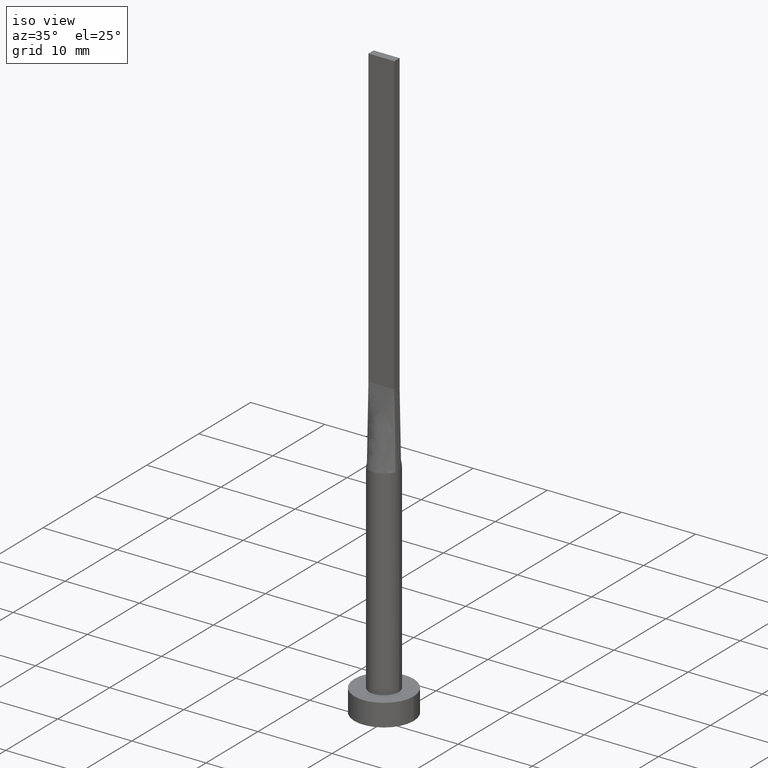
[diagram: clean part render]
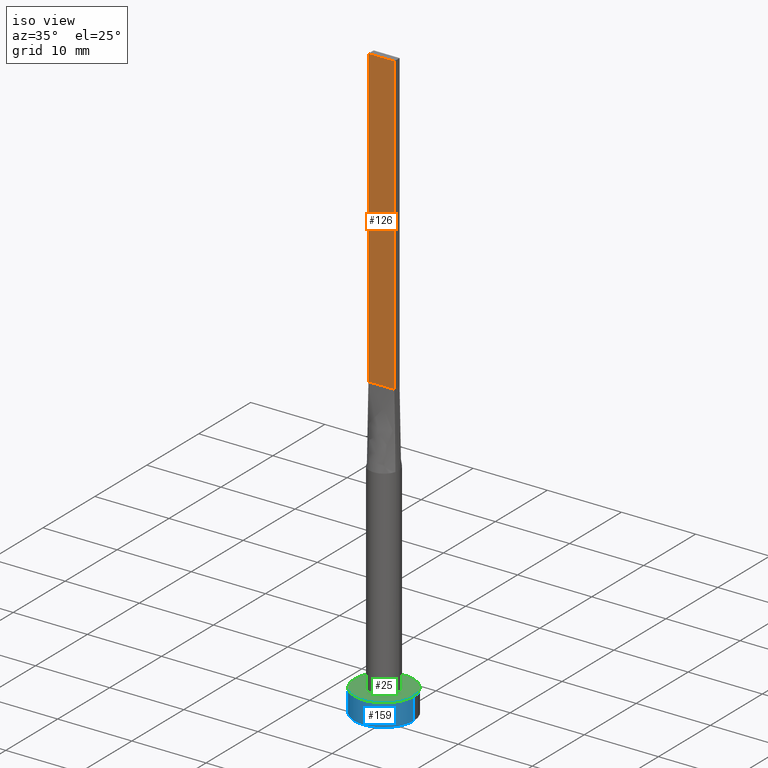
[diagram: same view with three faces highlighted in distinct colors, each labeled with its STEP entity id]
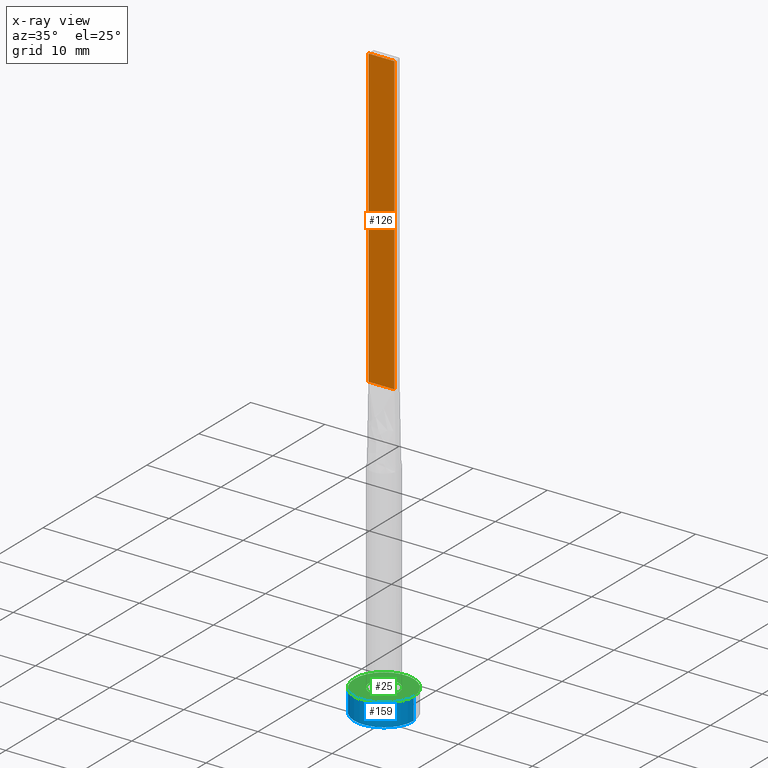
[diagram: x-ray of the same camera — body ghosted, the three highlighted faces saturated]
A machine part, iso view with three faces highlighted in distinct colors.
The next image is the same camera in x-ray (body ghosted, the three faces saturated) — at least one of them is partly hidden behind the body in this view.
Their STEP definitions:

[orange] entity #126 — the highlighted planar face has unit normal (0, 1, -0).
#2 = CARTESIAN_POINT ( 'NONE',  ( -1.750000000000000000, -0.4999999999999995559, 80.00000000000000000 ) ) ;
#8 = EDGE_CURVE ( 'NONE', #465, #335, #560, .T. ) ;
#19 = CARTESIAN_POINT ( 'NONE',  ( -1.750000000000000000, -0.4999999999999995559, 80.00000000000000000 ) ) ;
#74 = DIRECTION ( 'NONE',  ( -0.000000000000000000, -0.000000000000000000, -1.000000000000000000 ) ) ;
#119 = VERTEX_POINT ( 'NONE', #399 ) ;
#120 = CARTESIAN_POINT ( 'NONE',  ( -1.750000000000000000, -0.4999999999999995559, 80.00000000000000000 ) ) ;
#126 = ADVANCED_FACE ( 'NONE', ( #535 ), #191, .F. ) ;
#132 = CARTESIAN_POINT ( 'NONE',  ( -1.750000000000000000, -0.4999999999999995559, 40.00000000000000000 ) ) ;
#161 = CARTESIAN_POINT ( 'NONE',  ( -1.750000000000000000, -0.4999999999999995559, 80.00000000000000000 ) ) ;
#166 = CARTESIAN_POINT ( 'NONE',  ( 1.750000000000000000, -0.4999999999999997780, 80.00000000000000000 ) ) ;
#185 = EDGE_CURVE ( 'NONE', #465, #119, #369, .T. ) ;
#191 = PLANE ( 'NONE',  #206 ) ;
#206 = AXIS2_PLACEMENT_3D ( 'NONE', #2, #270, #276 ) ;
#209 = DIRECTION ( 'NONE',  ( 1.000000000000000000, -6.195440985631454085E-17, 0.000000000000000000 ) ) ;
#213 = CARTESIAN_POINT ( 'NONE',  ( -1.750000000000000000, -0.4999999999999995559, 40.00000000000000000 ) ) ;
#244 = VERTEX_POINT ( 'NONE', #329 ) ;
#245 = VECTOR ( 'NONE', #209, 1000.000000000000000 ) ;
#264 = EDGE_CURVE ( 'NONE', #335, #244, #318, .T. ) ;
#270 = DIRECTION ( 'NONE',  ( 6.195440985631454085E-17, 1.000000000000000000, -0.000000000000000000 ) ) ;
#276 = DIRECTION ( 'NONE',  ( -1.000000000000000000, 6.195440985631454085E-17, 0.000000000000000000 ) ) ;
#291 = DIRECTION ( 'NONE',  ( 1.000000000000000000, -6.195440985631454085E-17, 0.000000000000000000 ) ) ;
#299 = DIRECTION ( 'NONE',  ( -0.000000000000000000, -0.000000000000000000, -1.000000000000000000 ) ) ;
#315 = VECTOR ( 'NONE', #299, 1000.000000000000000 ) ;
#318 = LINE ( 'NONE', #132, #245 ) ;
#329 = CARTESIAN_POINT ( 'NONE',  ( 1.750000000000000000, -0.4999999999999997780, 40.00000000000000000 ) ) ;
#335 = VERTEX_POINT ( 'NONE', #213 ) ;
#366 = EDGE_LOOP ( 'NONE', ( #370, #552, #416, #475 ) ) ;
#369 = LINE ( 'NONE', #19, #373 ) ;
#370 = ORIENTED_EDGE ( 'NONE', *, *, #264, .T. ) ;
#373 = VECTOR ( 'NONE', #291, 1000.000000000000000 ) ;
#399 = CARTESIAN_POINT ( 'NONE',  ( 1.750000000000000000, -0.4999999999999997780, 80.00000000000000000 ) ) ;
#416 = ORIENTED_EDGE ( 'NONE', *, *, #185, .F. ) ;
#421 = EDGE_CURVE ( 'NONE', #119, #244, #429, .T. ) ;
#429 = LINE ( 'NONE', #166, #432 ) ;
#432 = VECTOR ( 'NONE', #74, 1000.000000000000000 ) ;
#465 = VERTEX_POINT ( 'NONE', #161 ) ;
#475 = ORIENTED_EDGE ( 'NONE', *, *, #8, .T. ) ;
#535 = FACE_OUTER_BOUND ( 'NONE', #366, .T. ) ;
#552 = ORIENTED_EDGE ( 'NONE', *, *, #421, .F. ) ;
#560 = LINE ( 'NONE', #120, #315 ) ;

[blue] entity #159 — the highlighted cylindrical surface (edge-blend (fillet) strip) has radius 4 mm, axis along (-0, -0, -1).
#5 = LINE ( 'NONE', #97, #457 ) ;
#10 = AXIS2_PLACEMENT_3D ( 'NONE', #265, #129, #345 ) ;
#11 = CARTESIAN_POINT ( 'NONE',  ( 0.000000000000000000, 0.000000000000000000, 3.000000000000000000 ) ) ;
#30 = AXIS2_PLACEMENT_3D ( 'NONE', #81, #314, #177 ) ;
#37 = DIRECTION ( 'NONE',  ( -0.000000000000000000, -0.000000000000000000, -1.000000000000000000 ) ) ;
#54 = CYLINDRICAL_SURFACE ( 'NONE', #214, 4.000000000000000000 ) ;
#55 = CARTESIAN_POINT ( 'NONE',  ( 4.000000000000000000, 4.898587196589412829E-16, 0.000000000000000000 ) ) ;
#63 = DIRECTION ( 'NONE',  ( -0.000000000000000000, -0.000000000000000000, -1.000000000000000000 ) ) ;
#81 = CARTESIAN_POINT ( 'NONE',  ( 0.000000000000000000, 0.000000000000000000, 3.000000000000000000 ) ) ;
#94 = EDGE_LOOP ( 'NONE', ( #243, #255, #220, #292 ) ) ;
#97 = CARTESIAN_POINT ( 'NONE',  ( -4.000000000000000000, 0.000000000000000000, 3.000000000000000000 ) ) ;
#105 = EDGE_CURVE ( 'NONE', #266, #505, #5, .T. ) ;
#109 = CIRCLE ( 'NONE', #30, 4.000000000000000000 ) ;
#129 = DIRECTION ( 'NONE',  ( 0.000000000000000000, 0.000000000000000000, 1.000000000000000000 ) ) ;
#159 = ADVANCED_FACE ( 'NONE', ( #180 ), #54, .T. ) ;
#169 = CARTESIAN_POINT ( 'NONE',  ( 4.000000000000000000, 4.898587196589412829E-16, 3.000000000000000000 ) ) ;
#177 = DIRECTION ( 'NONE',  ( 1.000000000000000000, 0.000000000000000000, 0.000000000000000000 ) ) ;
#180 = FACE_OUTER_BOUND ( 'NONE', #94, .T. ) ;
#207 = CARTESIAN_POINT ( 'NONE',  ( -4.000000000000000000, 0.000000000000000000, 3.000000000000000000 ) ) ;
#214 = AXIS2_PLACEMENT_3D ( 'NONE', #11, #37, #354 ) ;
#220 = ORIENTED_EDGE ( 'NONE', *, *, #105, .T. ) ;
#233 = VERTEX_POINT ( 'NONE', #55 ) ;
#243 = ORIENTED_EDGE ( 'NONE', *, *, #301, .F. ) ;
#255 = ORIENTED_EDGE ( 'NONE', *, *, #320, .F. ) ;
#265 = CARTESIAN_POINT ( 'NONE',  ( 0.000000000000000000, 0.000000000000000000, 0.000000000000000000 ) ) ;
#266 = VERTEX_POINT ( 'NONE', #207 ) ;
#289 = VERTEX_POINT ( 'NONE', #169 ) ;
#292 = ORIENTED_EDGE ( 'NONE', *, *, #521, .T. ) ;
#300 = CARTESIAN_POINT ( 'NONE',  ( 4.000000000000000000, 4.898587196589412829E-16, 3.000000000000000000 ) ) ;
#301 = EDGE_CURVE ( 'NONE', #289, #233, #374, .T. ) ;
#314 = DIRECTION ( 'NONE',  ( 0.000000000000000000, 0.000000000000000000, 1.000000000000000000 ) ) ;
#320 = EDGE_CURVE ( 'NONE', #266, #289, #109, .T. ) ;
#345 = DIRECTION ( 'NONE',  ( 1.000000000000000000, 0.000000000000000000, 0.000000000000000000 ) ) ;
#354 = DIRECTION ( 'NONE',  ( -1.000000000000000000, 0.000000000000000000, 0.000000000000000000 ) ) ;
#374 = LINE ( 'NONE', #300, #543 ) ;
#441 = CARTESIAN_POINT ( 'NONE',  ( -4.000000000000000000, 0.000000000000000000, 0.000000000000000000 ) ) ;
#457 = VECTOR ( 'NONE', #491, 1000.000000000000000 ) ;
#491 = DIRECTION ( 'NONE',  ( -0.000000000000000000, -0.000000000000000000, -1.000000000000000000 ) ) ;
#505 = VERTEX_POINT ( 'NONE', #441 ) ;
#517 = CIRCLE ( 'NONE', #10, 4.000000000000000000 ) ;
#521 = EDGE_CURVE ( 'NONE', #505, #233, #517, .T. ) ;
#543 = VECTOR ( 'NONE', #63, 1000.000000000000000 ) ;

[green] entity #25 — the highlighted planar face has unit normal (0, 0, 1).
#24 = FACE_BOUND ( 'NONE', #513, .T. ) ;
#25 = ADVANCED_FACE ( 'NONE', ( #24, #36 ), #528, .T. ) ;
#30 = AXIS2_PLACEMENT_3D ( 'NONE', #81, #314, #177 ) ;
#36 = FACE_OUTER_BOUND ( 'NONE', #268, .T. ) ;
#81 = CARTESIAN_POINT ( 'NONE',  ( 0.000000000000000000, 0.000000000000000000, 3.000000000000000000 ) ) ;
#91 = CARTESIAN_POINT ( 'NONE',  ( 0.000000000000000000, 0.000000000000000000, 3.000000000000000000 ) ) ;
#99 = VERTEX_POINT ( 'NONE', #404 ) ;
#109 = CIRCLE ( 'NONE', #30, 4.000000000000000000 ) ;
#117 = EDGE_CURVE ( 'NONE', #288, #99, #545, .T. ) ;
#122 = CARTESIAN_POINT ( 'NONE',  ( 0.000000000000000000, 0.000000000000000000, 3.000000000000000000 ) ) ;
#156 = AXIS2_PLACEMENT_3D ( 'NONE', #91, #540, #495 ) ;
#158 = ORIENTED_EDGE ( 'NONE', *, *, #548, .T. ) ;
#169 = CARTESIAN_POINT ( 'NONE',  ( 4.000000000000000000, 4.898587196589412829E-16, 3.000000000000000000 ) ) ;
#171 = DIRECTION ( 'NONE',  ( 0.000000000000000000, 0.000000000000000000, 1.000000000000000000 ) ) ;
#177 = DIRECTION ( 'NONE',  ( 1.000000000000000000, 0.000000000000000000, 0.000000000000000000 ) ) ;
#207 = CARTESIAN_POINT ( 'NONE',  ( -4.000000000000000000, 0.000000000000000000, 3.000000000000000000 ) ) ;
#216 = CARTESIAN_POINT ( 'NONE',  ( 0.000000000000000000, 0.000000000000000000, 3.000000000000000000 ) ) ;
#219 = CARTESIAN_POINT ( 'NONE',  ( 0.000000000000000000, 0.000000000000000000, 3.000000000000000000 ) ) ;
#266 = VERTEX_POINT ( 'NONE', #207 ) ;
#268 = EDGE_LOOP ( 'NONE', ( #551, #158 ) ) ;
#271 = DIRECTION ( 'NONE',  ( 1.000000000000000000, 0.000000000000000000, 0.000000000000000000 ) ) ;
#288 = VERTEX_POINT ( 'NONE', #377 ) ;
#289 = VERTEX_POINT ( 'NONE', #169 ) ;
#314 = DIRECTION ( 'NONE',  ( 0.000000000000000000, 0.000000000000000000, 1.000000000000000000 ) ) ;
#320 = EDGE_CURVE ( 'NONE', #266, #289, #109, .T. ) ;
#351 = AXIS2_PLACEMENT_3D ( 'NONE', #219, #171, #397 ) ;
#377 = CARTESIAN_POINT ( 'NONE',  ( -2.000000000000000000, 0.000000000000000000, 3.000000000000000000 ) ) ;
#379 = AXIS2_PLACEMENT_3D ( 'NONE', #122, #574, #468 ) ;
#384 = EDGE_CURVE ( 'NONE', #99, #288, #523, .T. ) ;
#397 = DIRECTION ( 'NONE',  ( 1.000000000000000000, 0.000000000000000000, 0.000000000000000000 ) ) ;
#404 = CARTESIAN_POINT ( 'NONE',  ( 2.000000000000000000, 2.449293598294706414E-16, 3.000000000000000000 ) ) ;
#423 = AXIS2_PLACEMENT_3D ( 'NONE', #216, #568, #271 ) ;
#445 = CIRCLE ( 'NONE', #423, 4.000000000000000000 ) ;
#455 = ORIENTED_EDGE ( 'NONE', *, *, #117, .F. ) ;
#468 = DIRECTION ( 'NONE',  ( 1.000000000000000000, 0.000000000000000000, -0.000000000000000000 ) ) ;
#495 = DIRECTION ( 'NONE',  ( 1.000000000000000000, 0.000000000000000000, 0.000000000000000000 ) ) ;
#513 = EDGE_LOOP ( 'NONE', ( #455, #520 ) ) ;
#520 = ORIENTED_EDGE ( 'NONE', *, *, #384, .F. ) ;
#523 = CIRCLE ( 'NONE', #351, 2.000000000000000000 ) ;
#528 = PLANE ( 'NONE',  #379 ) ;
#540 = DIRECTION ( 'NONE',  ( 0.000000000000000000, 0.000000000000000000, 1.000000000000000000 ) ) ;
#545 = CIRCLE ( 'NONE', #156, 2.000000000000000000 ) ;
#548 = EDGE_CURVE ( 'NONE', #289, #266, #445, .T. ) ;
#551 = ORIENTED_EDGE ( 'NONE', *, *, #320, .T. ) ;
#568 = DIRECTION ( 'NONE',  ( 0.000000000000000000, 0.000000000000000000, 1.000000000000000000 ) ) ;
#574 = DIRECTION ( 'NONE',  ( 0.000000000000000000, 0.000000000000000000, 1.000000000000000000 ) ) ;